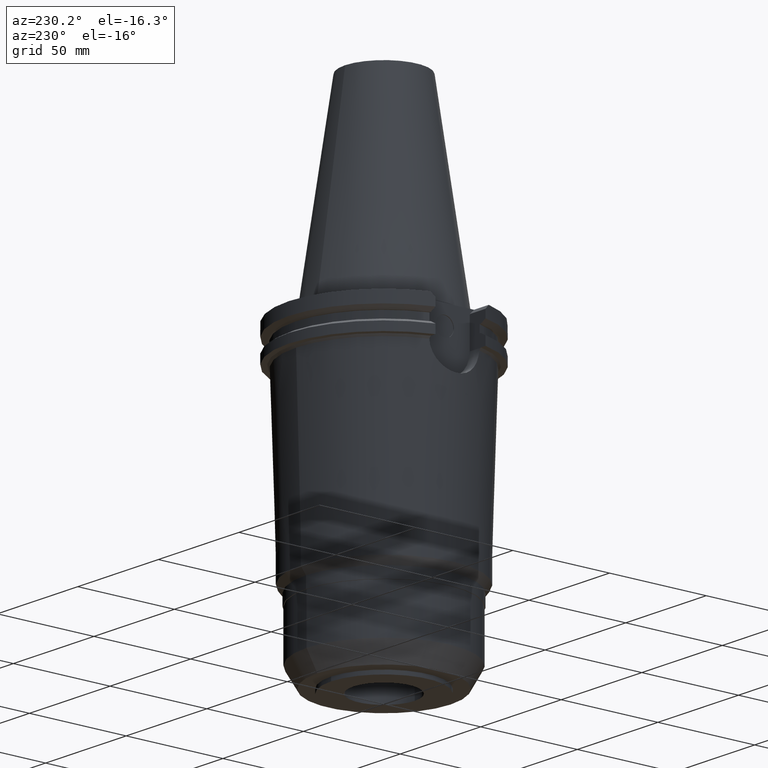
[diagram: clean part render]
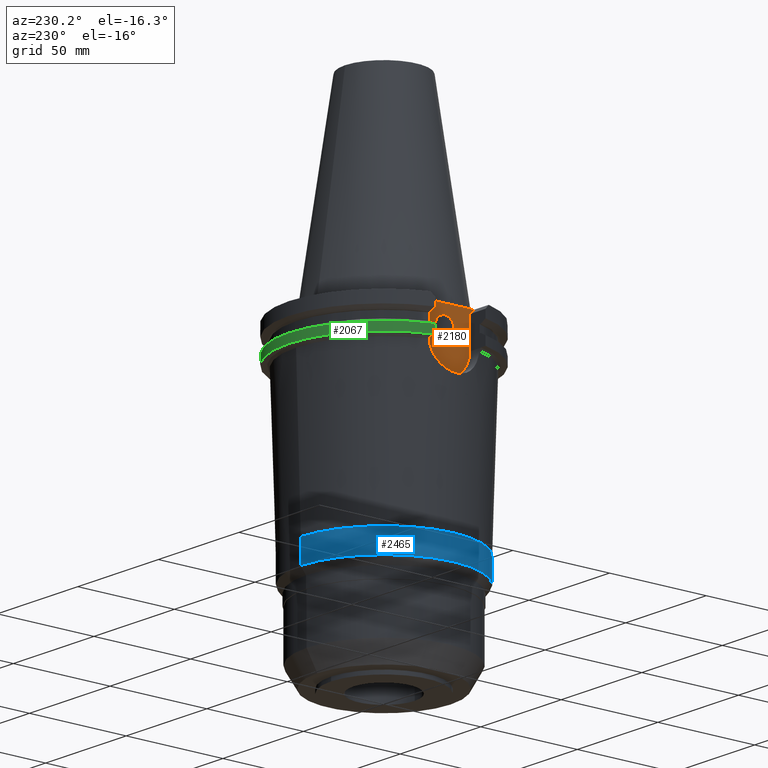
[diagram: same view with three faces highlighted in distinct colors, each labeled with its STEP entity id]
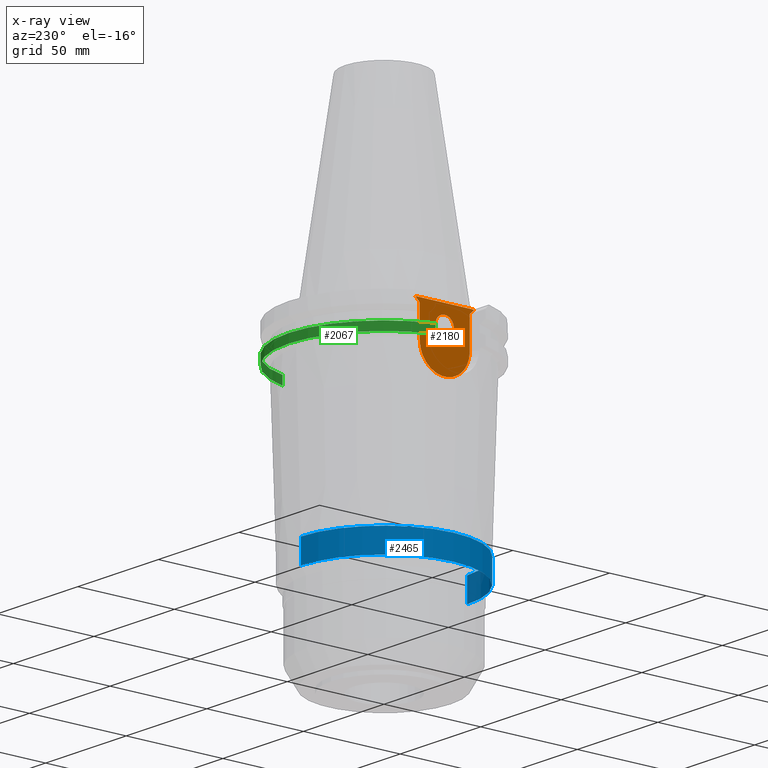
[diagram: x-ray of the same camera — body ghosted, the three highlighted faces saturated]
A machine part, auxiliary view with three faces highlighted in distinct colors.
The next image is the same camera in x-ray (body ghosted, the three faces saturated) — at least one of them is partly hidden behind the body in this view.
Their STEP definitions:

[orange] entity #2180 — the highlighted planar face has unit normal (1, 0, 0).
#124=DIRECTION('',(0.E0,1.E0,0.E0));
#125=VECTOR('',#124,3.031E1);
#126=CARTESIAN_POINT('',(-3.768E1,-1.5155E1,-1.5E0));
#127=LINE('',#126,#125);
#438=DIRECTION('',(0.E0,0.E0,-1.E0));
#439=VECTOR('',#438,1.5445E1);
#440=CARTESIAN_POINT('',(-3.768E1,1.2955E1,-3.7E0));
#441=LINE('',#440,#439);
#670=DIRECTION('',(0.E0,7.071067811865E-1,-7.071067811865E-1));
#671=VECTOR('',#670,3.111269837221E0);
#672=CARTESIAN_POINT('',(-3.768E1,-1.5155E1,-1.5E0));
#673=LINE('',#672,#671);
#677=CARTESIAN_POINT('',(-3.768E1,0.E0,-1.9145E1));
#678=DIRECTION('',(1.E0,0.E0,0.E0));
#679=DIRECTION('',(0.E0,-1.E0,0.E0));
#680=AXIS2_PLACEMENT_3D('',#677,#678,#679);
#685=DIRECTION('',(0.E0,7.071067811865E-1,7.071067811865E-1));
#686=VECTOR('',#685,3.111269837221E0);
#687=CARTESIAN_POINT('',(-3.768E1,1.2955E1,-3.7E0));
#688=LINE('',#687,#686);
#692=CARTESIAN_POINT('',(-3.768E1,0.E0,-1.118E1));
#693=DIRECTION('',(-1.E0,0.E0,0.E0));
#694=DIRECTION('',(0.E0,0.E0,1.E0));
#695=AXIS2_PLACEMENT_3D('',#692,#693,#694);
#700=CARTESIAN_POINT('',(-3.768E1,0.E0,-1.118E1));
#701=DIRECTION('',(-1.E0,0.E0,0.E0));
#702=DIRECTION('',(0.E0,0.E0,-1.E0));
#703=AXIS2_PLACEMENT_3D('',#700,#701,#702);
#817=DIRECTION('',(0.E0,0.E0,1.E0));
#818=VECTOR('',#817,1.5445E1);
#819=CARTESIAN_POINT('',(-3.768E1,-1.2955E1,-1.9145E1));
#820=LINE('',#819,#818);
#1571=CARTESIAN_POINT('',(-3.768E1,1.2955E1,-1.9145E1));
#1572=VERTEX_POINT('',#1571);
#1573=CARTESIAN_POINT('',(-3.768E1,-1.2955E1,-1.9145E1));
#1574=VERTEX_POINT('',#1573);
#1618=CARTESIAN_POINT('',(-3.768E1,-1.2955E1,-3.7E0));
#1619=VERTEX_POINT('',#1618);
#1632=CARTESIAN_POINT('',(-3.768E1,-1.5155E1,-1.5E0));
#1633=CARTESIAN_POINT('',(-3.768E1,1.5155E1,-1.5E0));
#1634=VERTEX_POINT('',#1632);
#1635=VERTEX_POINT('',#1633);
#1636=CARTESIAN_POINT('',(-3.768E1,1.2955E1,-3.7E0));
#1637=VERTEX_POINT('',#1636);
#1638=CARTESIAN_POINT('',(-3.768E1,0.E0,-6.4175E0));
#1639=CARTESIAN_POINT('',(-3.768E1,0.E0,-1.59425E1));
#1640=VERTEX_POINT('',#1638);
#1641=VERTEX_POINT('',#1639);
#2159=CARTESIAN_POINT('',(-3.768E1,0.E0,0.E0));
#2160=DIRECTION('',(1.E0,0.E0,0.E0));
#2161=DIRECTION('',(0.E0,-1.E0,0.E0));
#2162=AXIS2_PLACEMENT_3D('',#2159,#2160,#2161);
#2163=PLANE('',#2162);
#2164=ORIENTED_EDGE('',*,*,#1811,.F.);
#2166=ORIENTED_EDGE('',*,*,#2165,.T.);
#2168=ORIENTED_EDGE('',*,*,#2167,.F.);
#2169=ORIENTED_EDGE('',*,*,#1998,.T.);
#2170=ORIENTED_EDGE('',*,*,#2029,.F.);
#2171=ORIENTED_EDGE('',*,*,#2152,.T.);
#2172=EDGE_LOOP('',(#2164,#2166,#2168,#2169,#2170,#2171));
#2173=FACE_OUTER_BOUND('',#2172,.F.);
#2175=ORIENTED_EDGE('',*,*,#2174,.T.);
#2177=ORIENTED_EDGE('',*,*,#2176,.T.);
#2178=EDGE_LOOP('',(#2175,#2177));
#2179=FACE_BOUND('',#2178,.F.);
#681=CIRCLE('',#680,1.2955E1);
#696=CIRCLE('',#695,4.7625E0);
#704=CIRCLE('',#703,4.7625E0);
#1811=EDGE_CURVE('',#1634,#1635,#127,.T.);
#1998=EDGE_CURVE('',#1574,#1572,#681,.T.);
#2029=EDGE_CURVE('',#1637,#1572,#441,.T.);
#2152=EDGE_CURVE('',#1637,#1635,#688,.T.);
#2165=EDGE_CURVE('',#1634,#1619,#673,.T.);
#2167=EDGE_CURVE('',#1574,#1619,#820,.T.);
#2174=EDGE_CURVE('',#1640,#1641,#696,.T.);
#2176=EDGE_CURVE('',#1641,#1640,#704,.T.);
#2180=ADVANCED_FACE('',(#2173,#2179),#2163,.F.);

[blue] entity #2465 — the highlighted cylindrical surface (partial cylindrical patch) has radius 43 mm, axis along (0, 0, -1).
#395=CARTESIAN_POINT('',(0.E0,0.E0,-9.78E1));
#396=DIRECTION('',(0.E0,0.E0,-1.E0));
#397=DIRECTION('',(0.E0,-1.E0,0.E0));
#398=AXIS2_PLACEMENT_3D('',#395,#396,#397);
#1078=DIRECTION('',(0.E0,8.502828071269E-13,-1.E0));
#1079=VECTOR('',#1078,1.199999999999E1);
#1080=CARTESIAN_POINT('',(0.E0,-4.3E1,-9.78E1));
#1081=LINE('',#1080,#1079);
#1085=DIRECTION('',(0.E0,-8.502828071269E-13,-1.E0));
#1086=VECTOR('',#1085,1.199999999999E1);
#1087=CARTESIAN_POINT('',(0.E0,4.3E1,-9.78E1));
#1088=LINE('',#1087,#1086);
#1115=CARTESIAN_POINT('',(0.E0,0.E0,-1.098E2));
#1116=DIRECTION('',(0.E0,0.E0,1.E0));
#1117=DIRECTION('',(0.E0,1.E0,0.E0));
#1118=AXIS2_PLACEMENT_3D('',#1115,#1116,#1117);
#1556=CARTESIAN_POINT('',(0.E0,4.299999999999E1,-1.098E2));
#1557=VERTEX_POINT('',#1556);
#1558=CARTESIAN_POINT('',(0.E0,-4.299999999998E1,-1.098E2));
#1559=VERTEX_POINT('',#1558);
#1560=CARTESIAN_POINT('',(0.E0,4.3E1,-9.78E1));
#1561=VERTEX_POINT('',#1560);
#1562=CARTESIAN_POINT('',(0.E0,-4.3E1,-9.78E1));
#1563=VERTEX_POINT('',#1562);
#2451=CARTESIAN_POINT('',(0.E0,2.625887666732E-14,1.1442E2));
#2452=DIRECTION('',(0.E0,0.E0,-1.E0));
#2453=DIRECTION('',(0.E0,-1.E0,0.E0));
#2454=AXIS2_PLACEMENT_3D('',#2451,#2452,#2453);
#2455=CYLINDRICAL_SURFACE('',#2454,4.3E1);
#2457=ORIENTED_EDGE('',*,*,#2456,.F.);
#2458=ORIENTED_EDGE('',*,*,#1982,.F.);
#2460=ORIENTED_EDGE('',*,*,#2459,.T.);
#2462=ORIENTED_EDGE('',*,*,#2461,.F.);
#2463=EDGE_LOOP('',(#2457,#2458,#2460,#2462));
#2464=FACE_OUTER_BOUND('',#2463,.F.);
#399=CIRCLE('',#398,4.3E1);
#1119=CIRCLE('',#1118,4.299999999998E1);
#1982=EDGE_CURVE('',#1563,#1561,#399,.T.);
#2456=EDGE_CURVE('',#1561,#1557,#1088,.T.);
#2459=EDGE_CURVE('',#1563,#1559,#1081,.T.);
#2461=EDGE_CURVE('',#1557,#1559,#1119,.T.);
#2465=ADVANCED_FACE('',(#2464),#2455,.T.);

[green] entity #2067 — the highlighted cylindrical surface (partial cylindrical patch) has radius 49.2125 mm, axis along (0, 0, -1).
#460=CARTESIAN_POINT('',(0.E0,2.625887666732E-14,-1.905E1));
#461=DIRECTION('',(0.E0,0.E0,1.E0));
#462=DIRECTION('',(9.647287063661E-1,2.632461264923E-1,0.E0));
#463=AXIS2_PLACEMENT_3D('',#460,#461,#462);
#468=CARTESIAN_POINT('',(0.E0,2.625887666732E-14,-1.905E1));
#469=DIRECTION('',(0.E0,0.E0,1.E0));
#470=DIRECTION('',(0.E0,1.E0,0.E0));
#471=AXIS2_PLACEMENT_3D('',#468,#469,#470);
#492=DIRECTION('',(1.341459893288E-13,4.848650216703E-14,1.E0));
#493=VECTOR('',#492,4.396333230921E0);
#494=CARTESIAN_POINT('',(4.747671146204E1,1.2955E1,-1.905E1));
#495=LINE('',#494,#493);
#499=DIRECTION('',(1.212162554176E-13,-4.808244798230E-14,-1.E0));
#500=VECTOR('',#499,4.396333230921E0);
#501=CARTESIAN_POINT('',(-4.747671146204E1,1.2955E1,-1.465366676908E1));
#502=LINE('',#501,#500);
#506=CARTESIAN_POINT('',(4.747671146204E1,1.2955E1,-1.465366676908E1));
#521=CARTESIAN_POINT('',(-4.747671146204E1,1.2955E1,-1.465366676908E1));
#526=CARTESIAN_POINT('',(0.E0,1.055026073065E-14,-1.465366676908E1));
#527=DIRECTION('',(0.E0,0.E0,-1.E0));
#528=DIRECTION('',(-9.647287063661E-1,2.632461264923E-1,0.E0));
#529=AXIS2_PLACEMENT_3D('',#526,#527,#528);
#534=CARTESIAN_POINT('',(0.E0,1.055026073065E-14,-1.465366676908E1));
#535=DIRECTION('',(0.E0,0.E0,-1.E0));
#536=DIRECTION('',(0.E0,1.E0,0.E0));
#537=AXIS2_PLACEMENT_3D('',#534,#535,#536);
#1612=CARTESIAN_POINT('',(4.747671146204E1,1.2955E1,-1.905E1));
#1613=VERTEX_POINT('',#1612);
#1614=CARTESIAN_POINT('',(0.E0,4.92125E1,-1.905E1));
#1615=CARTESIAN_POINT('',(-4.747671146204E1,1.2955E1,-1.905E1));
#1616=VERTEX_POINT('',#1614);
#1617=VERTEX_POINT('',#1615);
#1714=VERTEX_POINT('',#506);
#1715=VERTEX_POINT('',#521);
#1716=CARTESIAN_POINT('',(0.E0,4.92125E1,-1.465366676908E1));
#1717=VERTEX_POINT('',#1716);
#2052=CARTESIAN_POINT('',(0.E0,2.625887666732E-14,1.1442E2));
#2053=DIRECTION('',(0.E0,0.E0,-1.E0));
#2054=DIRECTION('',(0.E0,-1.E0,0.E0));
#2055=AXIS2_PLACEMENT_3D('',#2052,#2053,#2054);
#2056=CYLINDRICAL_SURFACE('',#2055,4.92125E1);
#2057=ORIENTED_EDGE('',*,*,#1906,.T.);
#2059=ORIENTED_EDGE('',*,*,#2058,.F.);
#2061=ORIENTED_EDGE('',*,*,#2060,.F.);
#2062=ORIENTED_EDGE('',*,*,#2014,.T.);
#2063=ORIENTED_EDGE('',*,*,#2044,.F.);
#2064=ORIENTED_EDGE('',*,*,#2042,.F.);
#2065=EDGE_LOOP('',(#2057,#2059,#2061,#2062,#2063,#2064));
#2066=FACE_OUTER_BOUND('',#2065,.F.);
#464=CIRCLE('',#463,4.92125E1);
#472=CIRCLE('',#471,4.92125E1);
#530=CIRCLE('',#529,4.92125E1);
#538=CIRCLE('',#537,4.92125E1);
#1906=EDGE_CURVE('',#1613,#1714,#495,.T.);
#2014=EDGE_CURVE('',#1715,#1617,#502,.T.);
#2042=EDGE_CURVE('',#1613,#1616,#464,.T.);
#2044=EDGE_CURVE('',#1616,#1617,#472,.T.);
#2058=EDGE_CURVE('',#1717,#1714,#538,.T.);
#2060=EDGE_CURVE('',#1715,#1717,#530,.T.);
#2067=ADVANCED_FACE('',(#2066),#2056,.T.);